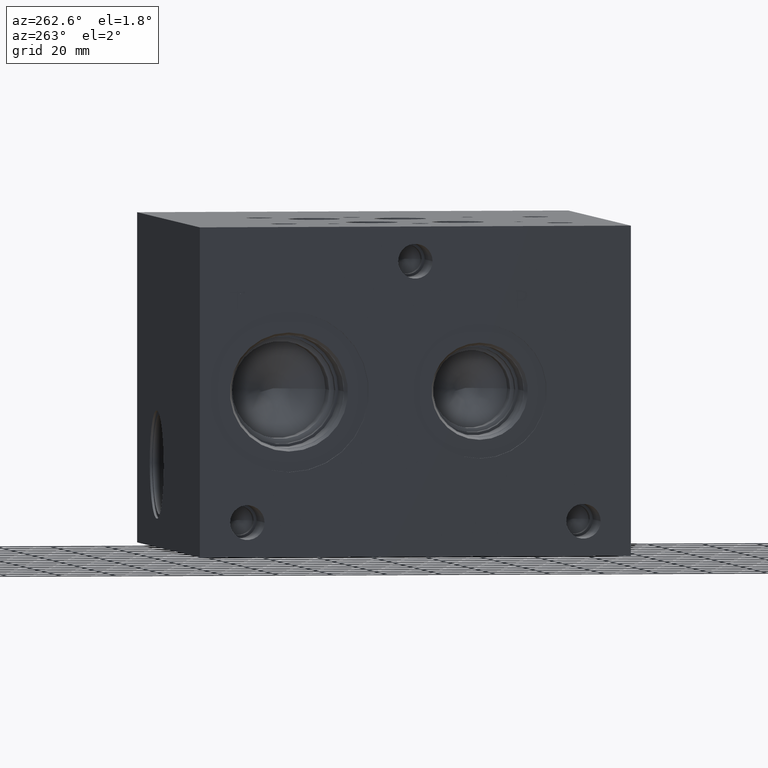
[diagram: clean part render]
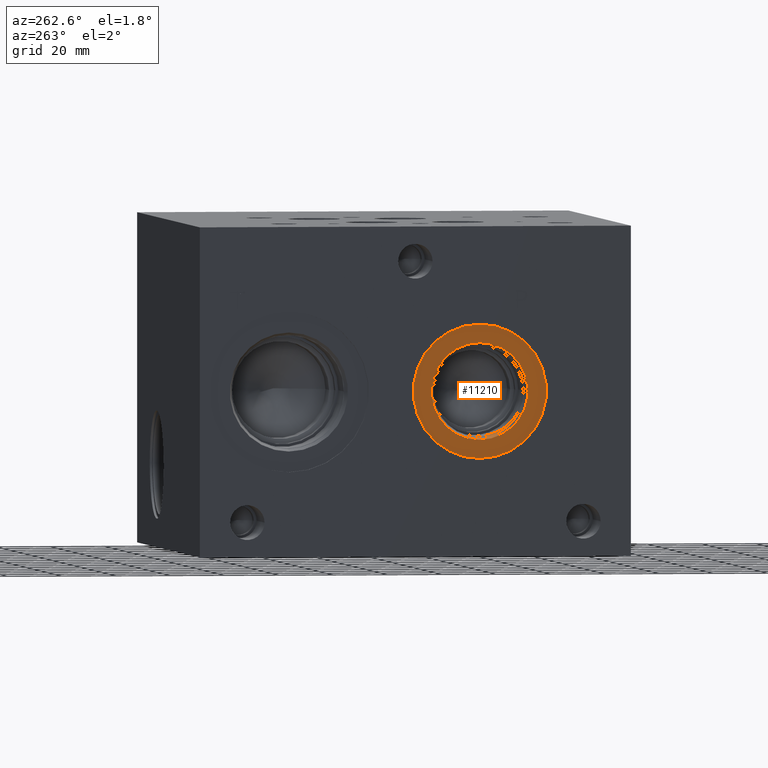
[diagram: same view with one face highlighted and labeled with its STEP entity id]
A machine part, auxiliary view. The second image highlights one B-rep face of the part: STEP entity #11210.
In plain terms, the highlighted planar face has unit normal (1, 0, 0).
Its self-contained STEP definition (entity closure, byte-faithful):
#265=CIRCLE('',#11823,24.5618);
#266=CIRCLE('',#11824,24.5618);
#267=CIRCLE('',#11826,17.7546);
#268=CIRCLE('',#11827,17.7546);
#476=FACE_BOUND('',#1976,.T.);
#1327=FACE_OUTER_BOUND('',#1975,.T.);
#1975=EDGE_LOOP('',(#9485,#9486));
#1976=EDGE_LOOP('',(#9487,#9488));
#5131=VERTEX_POINT('',#18790);
#5132=VERTEX_POINT('',#18792);
#5133=VERTEX_POINT('',#18796);
#5134=VERTEX_POINT('',#18797);
#6633=EDGE_CURVE('',#5131,#5132,#265,.T.);
#6634=EDGE_CURVE('',#5132,#5131,#266,.T.);
#6635=EDGE_CURVE('',#5133,#5134,#267,.T.);
#6636=EDGE_CURVE('',#5134,#5133,#268,.T.);
#9485=ORIENTED_EDGE('',*,*,#6634,.F.);
#9486=ORIENTED_EDGE('',*,*,#6633,.F.);
#9487=ORIENTED_EDGE('',*,*,#6635,.T.);
#9488=ORIENTED_EDGE('',*,*,#6636,.T.);
#10288=PLANE('',#11825);
#11210=ADVANCED_FACE('',(#1327,#476),#10288,.F.);
#11823=AXIS2_PLACEMENT_3D('',#18793,#14062,#14063);
#11824=AXIS2_PLACEMENT_3D('',#18794,#14064,#14065);
#11825=AXIS2_PLACEMENT_3D('',#18795,#14066,#14067);
#11826=AXIS2_PLACEMENT_3D('',#18798,#14068,#14069);
#11827=AXIS2_PLACEMENT_3D('',#18799,#14070,#14071);
#14062=DIRECTION('center_axis',(1.,0.,0.));
#14063=DIRECTION('ref_axis',(0.,0.,-1.));
#14064=DIRECTION('center_axis',(1.,0.,0.));
#14065=DIRECTION('ref_axis',(0.,0.,-1.));
#14066=DIRECTION('center_axis',(1.,0.,0.));
#14067=DIRECTION('ref_axis',(0.,0.,-1.));
#14068=DIRECTION('center_axis',(1.,0.,0.));
#14069=DIRECTION('ref_axis',(0.,0.,-1.));
#14070=DIRECTION('center_axis',(1.,0.,0.));
#14071=DIRECTION('ref_axis',(0.,0.,-1.));
#18790=CARTESIAN_POINT('',(0.7874,55.5752,35.7632));
#18792=CARTESIAN_POINT('',(0.7874,55.5752,84.8868));
#18793=CARTESIAN_POINT('Origin',(0.7874,55.5752,60.325));
#18794=CARTESIAN_POINT('Origin',(0.7874,55.5752,60.325));
#18795=CARTESIAN_POINT('Origin',(0.7874,55.5752,78.0796));
#18796=CARTESIAN_POINT('',(0.7874,55.5752,78.0796));
#18797=CARTESIAN_POINT('',(0.787400000000001,55.5752,42.5704));
#18798=CARTESIAN_POINT('Origin',(0.7874,55.5752,60.325));
#18799=CARTESIAN_POINT('Origin',(0.7874,55.5752,60.325));